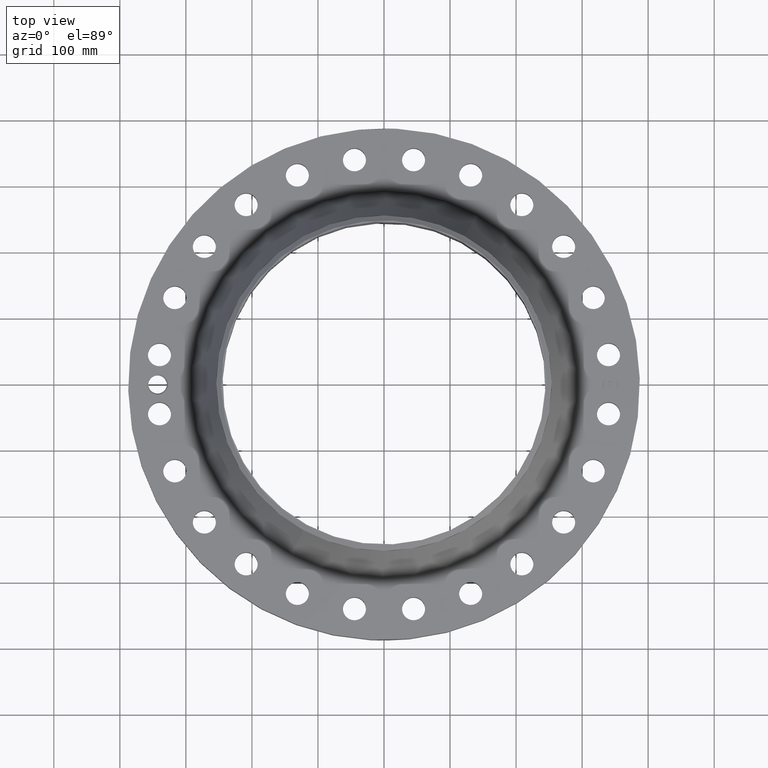
[diagram: clean part render]
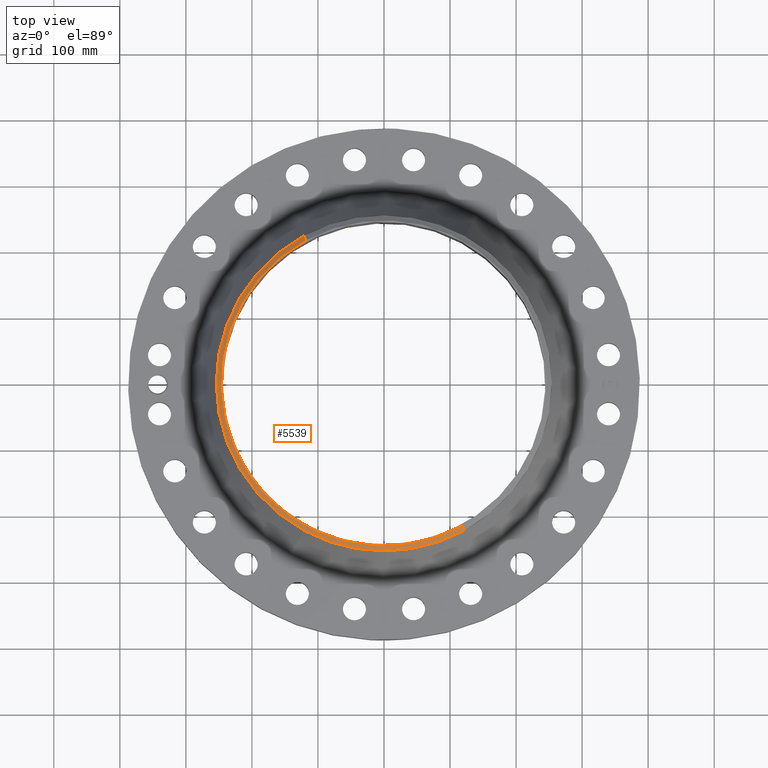
[diagram: same view with one face highlighted and labeled with its STEP entity id]
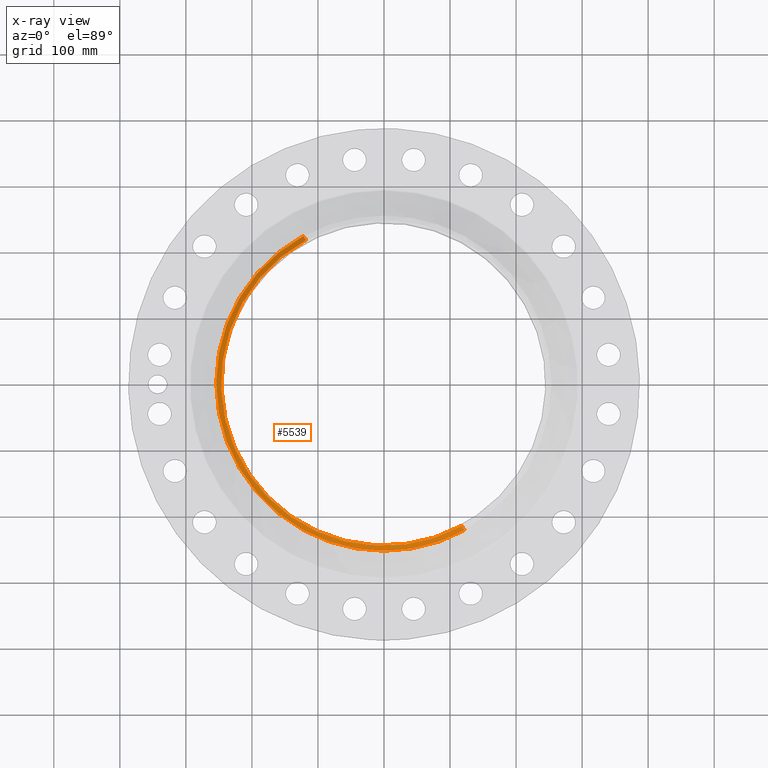
[diagram: x-ray of the same camera — body ghosted, the highlighted face saturated]
A machine part, top view. The second image highlights one B-rep face of the part: STEP entity #5539.
The next image is the same camera in x-ray: the body ghosted, the highlighted face saturated — about 0% of this face is hidden behind the body in this view.
In plain terms, the highlighted conical surface has half-angle 52.5 deg.
Its self-contained STEP definition (entity closure, byte-faithful):
#4365=AXIS2_PLACEMENT_3D('Circle Axis2P3D',#4363,#4364,$) ;
#4378=AXIS2_PLACEMENT_3D('Circle Axis2P3D',#4376,#4377,$) ;
#5168=AXIS2_PLACEMENT_3D('Circle Axis2P3D',#5166,#5167,$) ;
#5512=AXIS2_PLACEMENT_3D('Cone Axis2P3D',#5509,#5510,#5511) ;
#4346=CARTESIAN_POINT('Vertex',(-4.79425538606,-8.77582561894,6.2126718274)) ;
#4360=CARTESIAN_POINT('Vertex',(4.79425538606,-8.77582561894,6.2126718274)) ;
#4363=CARTESIAN_POINT('Axis2P3D Location',(0.,0.,6.2126718274)) ;
#4376=CARTESIAN_POINT('Axis2P3D Location',(0.,0.,6.2126718274)) ;
#4380=CARTESIAN_POINT('Vertex',(-4.79425538606,8.77582561894,6.2126718274)) ;
#5161=CARTESIAN_POINT('Vertex',(4.65222085149,-8.51583314735,6.44000000003)) ;
#5163=CARTESIAN_POINT('Vertex',(-4.65222085149,8.51583314735,6.44000000003)) ;
#5166=CARTESIAN_POINT('Axis2P3D Location',(0.,0.,6.44000000003)) ;
#5509=CARTESIAN_POINT('Axis2P3D Location',(0.,0.,6.44000000003)) ;
#5514=CARTESIAN_POINT('Line Origine',(-4.72323811878,8.64582938315,6.32633591372)) ;
#5519=CARTESIAN_POINT('Line Origine',(4.72323811878,-8.64582938315,6.32633591372)) ;
#4364=DIRECTION('Axis2P3D Direction',(0.,0.,-0.0393700787402)) ;
#4377=DIRECTION('Axis2P3D Direction',(0.,0.,-0.0393700787402)) ;
#5167=DIRECTION('Axis2P3D Direction',(0.,0.,-0.0393700787402)) ;
#5510=DIRECTION('Axis2P3D Direction',(-0.,-0.,-0.0393700787402)) ;
#5511=DIRECTION('Axis2P3D XDirection',(0.0188750212049,-0.0345504945626,0.)) ;
#5515=DIRECTION('Vector Direction',(-0.014974561121,0.02741075027,-0.023966985394)) ;
#5520=DIRECTION('Vector Direction',(0.014974561121,-0.02741075027,-0.023966985394)) ;
#5516=VECTOR('Line Direction',#5515,0.0393700787402) ;
#5521=VECTOR('Line Direction',#5520,0.0393700787402) ;
#5533=ORIENTED_EDGE('',*,*,#5523,.F.) ;
#5534=ORIENTED_EDGE('',*,*,#5170,.F.) ;
#5535=ORIENTED_EDGE('',*,*,#5518,.T.) ;
#5536=ORIENTED_EDGE('',*,*,#4382,.T.) ;
#5537=ORIENTED_EDGE('',*,*,#4367,.F.) ;
#5539=ADVANCED_FACE('PartBody',(#5538),#5513,.T.) ;
#4366=CIRCLE('generated circle',#4365,10.) ;
#4379=CIRCLE('generated circle',#4378,10.) ;
#5169=CIRCLE('generated circle',#5168,9.70374015752) ;
#5513=CONICAL_SURFACE('Cone',#5512,9.70374015752,0.916297857297) ;
#4367=EDGE_CURVE('',#4361,#4347,#4366,.T.) ;
#4382=EDGE_CURVE('',#4381,#4347,#4379,.F.) ;
#5170=EDGE_CURVE('',#5164,#5162,#5169,.F.) ;
#5518=EDGE_CURVE('',#5164,#4381,#5517,.T.) ;
#5523=EDGE_CURVE('',#5162,#4361,#5522,.T.) ;
#5532=EDGE_LOOP('',(#5533,#5534,#5535,#5536,#5537)) ;
#5538=FACE_OUTER_BOUND('',#5532,.T.) ;
#5517=LINE('Line',#5514,#5516) ;
#5522=LINE('Line',#5519,#5521) ;
#4347=VERTEX_POINT('',#4346) ;
#4361=VERTEX_POINT('',#4360) ;
#4381=VERTEX_POINT('',#4380) ;
#5162=VERTEX_POINT('',#5161) ;
#5164=VERTEX_POINT('',#5163) ;